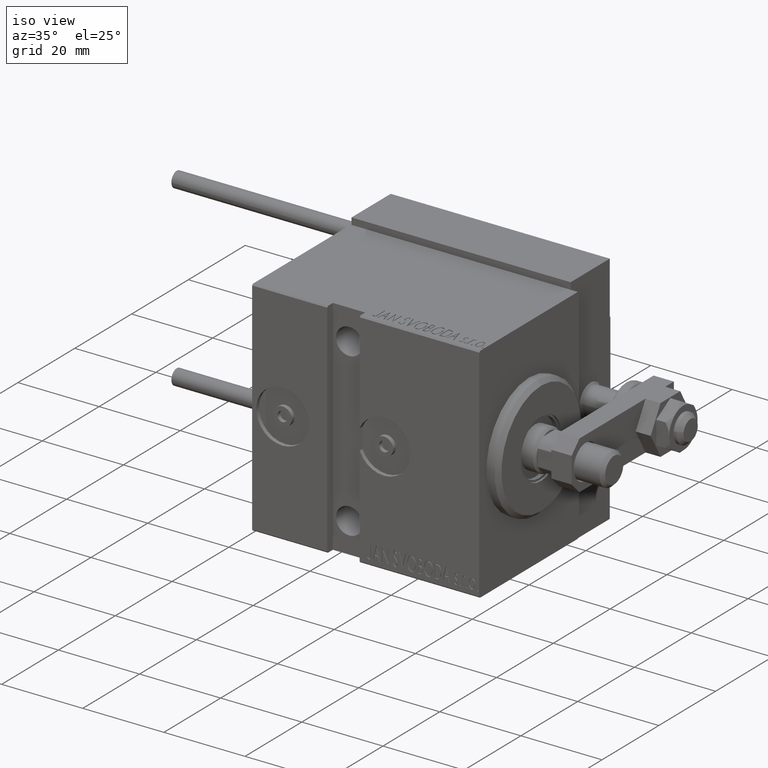
[diagram: clean part render]
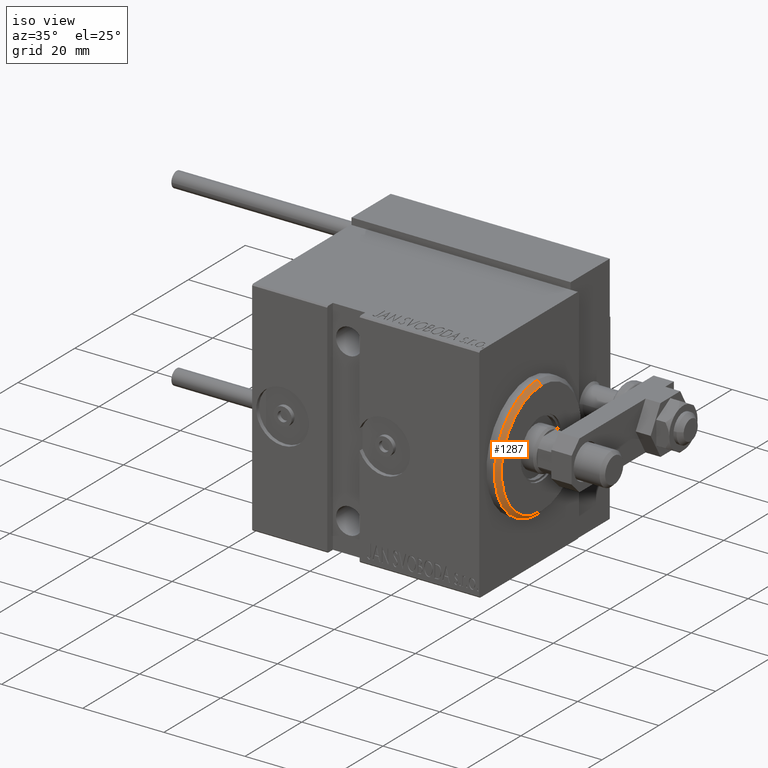
[diagram: same view with one face highlighted and labeled with its STEP entity id]
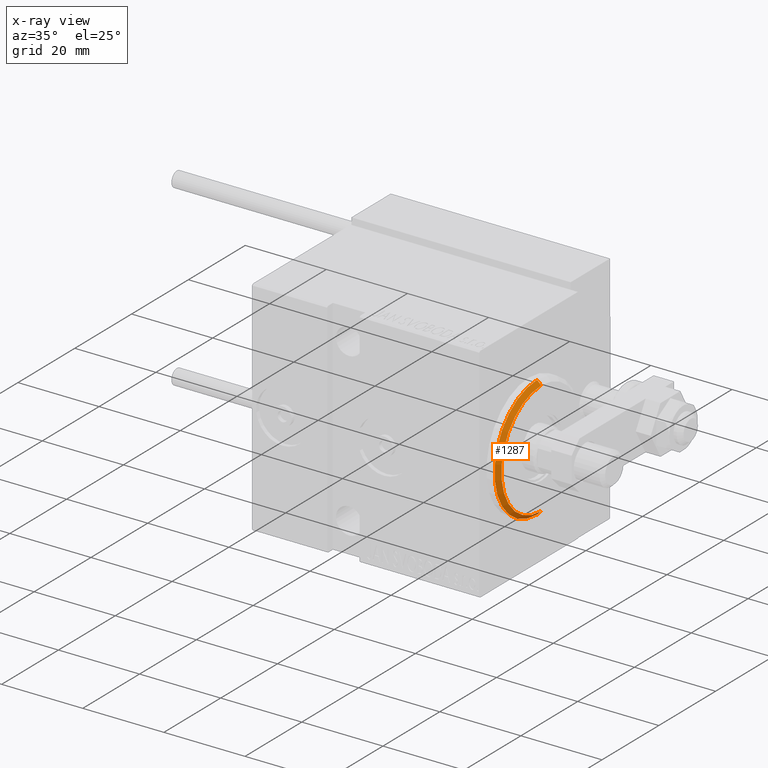
[diagram: x-ray of the same camera — body ghosted, the highlighted face saturated]
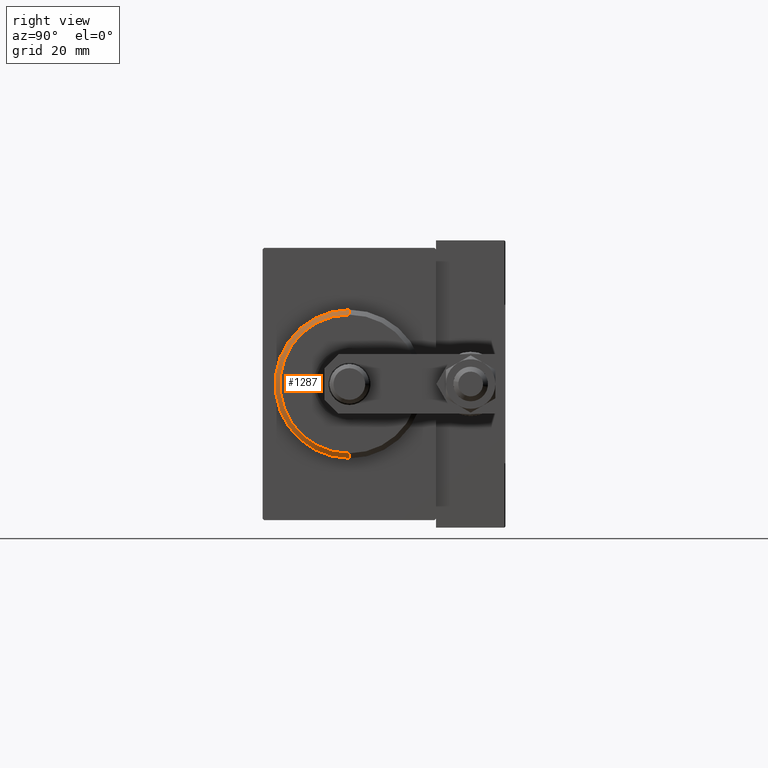
[diagram: same view with one face highlighted and labeled with its STEP entity id]
A machine part, iso view. The second image highlights one B-rep face of the part: STEP entity #1287.
The next image is the same camera in x-ray: the body ghosted, the highlighted face saturated — about 0% of this face is hidden behind the body in this view.
A second angle (right view) of the same face is appended — the face is thin or edge-on in the first view.
In plain terms, the highlighted conical surface has half-angle 45 deg.
Its self-contained STEP definition (entity closure, byte-faithful):
#1046 = EDGE_LOOP ( 'NONE', ( #39763, #45449, #20902, #33053 ) ) ;
#1093 = DIRECTION ( 'NONE',  ( 0.000000000000000000, 0.000000000000000000, -1.000000000000000000 ) ) ;
#1287 = ADVANCED_FACE ( 'NONE', ( #11011 ), #10479, .T. ) ;
#1752 = VERTEX_POINT ( 'NONE', #43593 ) ;
#2393 = CIRCLE ( 'NONE', #35772, 13.99999999999998934 ) ;
#4443 = DIRECTION ( 'NONE',  ( 0.000000000000000000, 0.000000000000000000, -1.000000000000000000 ) ) ;
#5807 = EDGE_CURVE ( 'NONE', #32480, #11395, #30668, .T. ) ;
#7450 = DIRECTION ( 'NONE',  ( -1.000000000000000000, 0.000000000000000000, 0.000000000000000000 ) ) ;
#8368 = VERTEX_POINT ( 'NONE', #45294 ) ;
#8514 = DIRECTION ( 'NONE',  ( -0.7071067811865482389, 8.659560562354926695E-17, -0.7071067811865469066 ) ) ;
#8847 = CARTESIAN_POINT ( 'NONE',  ( 1.999999999999988676, 1.836970198721029589E-15, -15.00000000000000000 ) ) ;
#9523 = AXIS2_PLACEMENT_3D ( 'NONE', #21214, #40340, #1093 ) ;
#10479 = CONICAL_SURFACE ( 'NONE', #22691, 13.99999999999998934, 0.7853981633974473908 ) ;
#11011 = FACE_OUTER_BOUND ( 'NONE', #1046, .T. ) ;
#11395 = VERTEX_POINT ( 'NONE', #43453 ) ;
#11558 = CARTESIAN_POINT ( 'NONE',  ( 3.000000000000000000, 0.000000000000000000, 0.000000000000000000 ) ) ;
#19607 = EDGE_CURVE ( 'NONE', #8368, #11395, #30477, .T. ) ;
#20230 = DIRECTION ( 'NONE',  ( 1.000000000000000000, -0.000000000000000000, 0.000000000000000000 ) ) ;
#20246 = CARTESIAN_POINT ( 'NONE',  ( 3.000000000000000000, 1.714505518806293257E-15, -13.99999999999998934 ) ) ;
#20902 = ORIENTED_EDGE ( 'NONE', *, *, #19607, .T. ) ;
#21214 = CARTESIAN_POINT ( 'NONE',  ( 1.999999999999988676, 0.000000000000000000, 0.000000000000000000 ) ) ;
#22691 = AXIS2_PLACEMENT_3D ( 'NONE', #42137, #7450, #30393 ) ;
#23297 = LINE ( 'NONE', #20246, #37748 ) ;
#24916 = EDGE_CURVE ( 'NONE', #8368, #1752, #2393, .T. ) ;
#27165 = DIRECTION ( 'NONE',  ( -0.7071067811865482389, 0.000000000000000000, 0.7071067811865469066 ) ) ;
#30393 = DIRECTION ( 'NONE',  ( 0.000000000000000000, 0.000000000000000000, 1.000000000000000000 ) ) ;
#30477 = LINE ( 'NONE', #50390, #49474 ) ;
#30668 = CIRCLE ( 'NONE', #9523, 15.00000000000000000 ) ;
#32480 = VERTEX_POINT ( 'NONE', #8847 ) ;
#33053 = ORIENTED_EDGE ( 'NONE', *, *, #5807, .F. ) ;
#35772 = AXIS2_PLACEMENT_3D ( 'NONE', #11558, #20230, #4443 ) ;
#35901 = EDGE_CURVE ( 'NONE', #1752, #32480, #23297, .T. ) ;
#37748 = VECTOR ( 'NONE', #8514, 999.9999999999998863 ) ;
#39763 = ORIENTED_EDGE ( 'NONE', *, *, #35901, .F. ) ;
#40340 = DIRECTION ( 'NONE',  ( -1.000000000000000000, 0.000000000000000000, 0.000000000000000000 ) ) ;
#42137 = CARTESIAN_POINT ( 'NONE',  ( 3.000000000000000000, 0.000000000000000000, 0.000000000000000000 ) ) ;
#43453 = CARTESIAN_POINT ( 'NONE',  ( 1.999999999999988676, 0.000000000000000000, 15.00000000000000000 ) ) ;
#43593 = CARTESIAN_POINT ( 'NONE',  ( 3.000000000000000000, 1.775737858763661226E-15, -13.99999999999998934 ) ) ;
#45294 = CARTESIAN_POINT ( 'NONE',  ( 3.000000000000000000, 0.000000000000000000, 13.99999999999998934 ) ) ;
#45449 = ORIENTED_EDGE ( 'NONE', *, *, #24916, .F. ) ;
#49474 = VECTOR ( 'NONE', #27165, 999.9999999999998863 ) ;
#50390 = CARTESIAN_POINT ( 'NONE',  ( 3.000000000000000000, 0.000000000000000000, 13.99999999999998934 ) ) ;